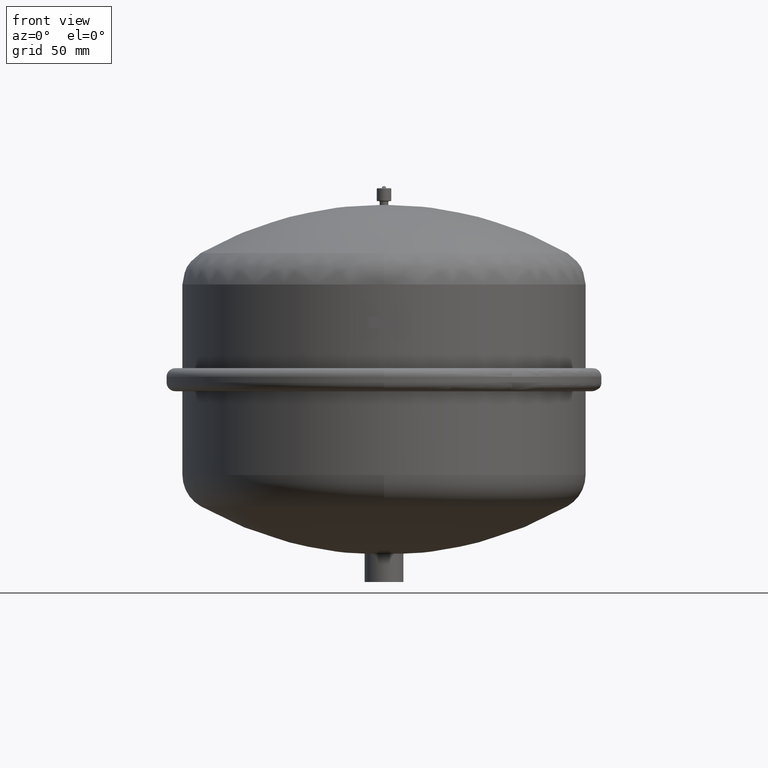
[diagram: clean part render]
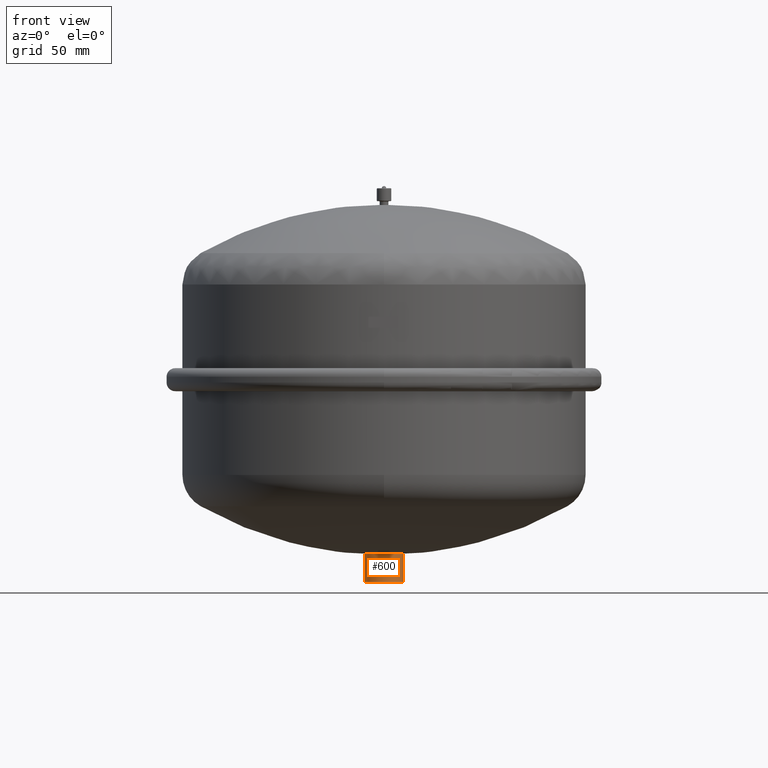
[diagram: same view with one face highlighted and labeled with its STEP entity id]
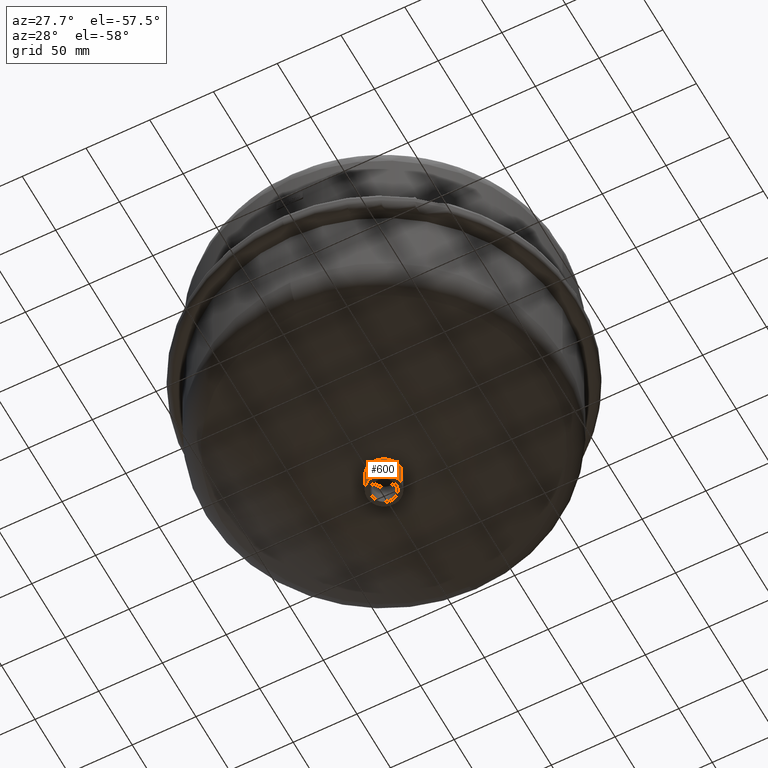
[diagram: same view with one face highlighted and labeled with its STEP entity id]
A machine part, front view. The second image highlights one B-rep face of the part: STEP entity #600.
A second angle (auxiliary view) of the same face is appended — the face is thin or edge-on in the first view.
In plain terms, the highlighted cylindrical surface (edge-blend (fillet) strip) has radius 13.45 mm, axis along (0, -0, 1).
Its self-contained STEP definition (entity closure, byte-faithful):
#474=CARTESIAN_POINT('',(-13.449999999999999,-4.898587E-015,20.0));
#475=VERTEX_POINT('',#474);
#476=CARTESIAN_POINT('',(-13.449999999999999,-5.438524E-032,0.0));
#477=VERTEX_POINT('',#476);
#478=CARTESIAN_POINT('',(-13.449999999999999,-4.898587E-015,20.0));
#479=DIRECTION('',(0.0,0.0,-1.0));
#480=VECTOR('',#479,20.0);
#481=LINE('',#478,#480);
#482=EDGE_CURVE('',#475,#477,#481,.T.);
#484=CARTESIAN_POINT('',(13.450000000000045,-3.251437E-015,20.0));
#485=VERTEX_POINT('',#484);
#493=CARTESIAN_POINT('',(13.450000000000045,1.647150E-015,2.842171E-014));
#494=VERTEX_POINT('',#493);
#495=CARTESIAN_POINT('',(13.449999999999999,-3.251492E-015,20.0));
#496=DIRECTION('',(0.0,0.0,-1.0));
#497=VECTOR('',#496,19.999999999999972);
#498=LINE('',#495,#497);
#499=EDGE_CURVE('',#485,#494,#498,.T.);
#577=CARTESIAN_POINT('',(0.0,0.0,0.0));
#578=DIRECTION('',(0.0,-2.449294E-016,1.0));
#579=DIRECTION('',(-1.0,0.0,0.0));
#580=AXIS2_PLACEMENT_3D('',#577,#578,#579);
#581=CYLINDRICAL_SURFACE('',#580,13.449999999999999);
#582=ORIENTED_EDGE('',*,*,#482,.T.);
#583=CARTESIAN_POINT('',(0.0,0.0,0.0));
#584=DIRECTION('',(0.0,0.0,-1.0));
#585=DIRECTION('',(-1.0,0.0,0.0));
#586=AXIS2_PLACEMENT_3D('',#583,#584,#585);
#587=CIRCLE('',#586,13.449999999999999);
#588=EDGE_CURVE('',#494,#477,#587,.T.);
#589=ORIENTED_EDGE('',*,*,#588,.F.);
#590=ORIENTED_EDGE('',*,*,#499,.F.);
#591=CARTESIAN_POINT('',(0.0,-4.898587E-015,20.0));
#592=DIRECTION('',(0.0,0.0,-1.0));
#593=DIRECTION('',(-1.0,0.0,0.0));
#594=AXIS2_PLACEMENT_3D('',#591,#592,#593);
#595=CIRCLE('',#594,13.449999999999999);
#596=EDGE_CURVE('',#485,#475,#595,.T.);
#597=ORIENTED_EDGE('',*,*,#596,.T.);
#598=EDGE_LOOP('',(#582,#589,#590,#597));
#599=FACE_OUTER_BOUND('',#598,.T.);
#600=ADVANCED_FACE('',(#599),#581,.T.);